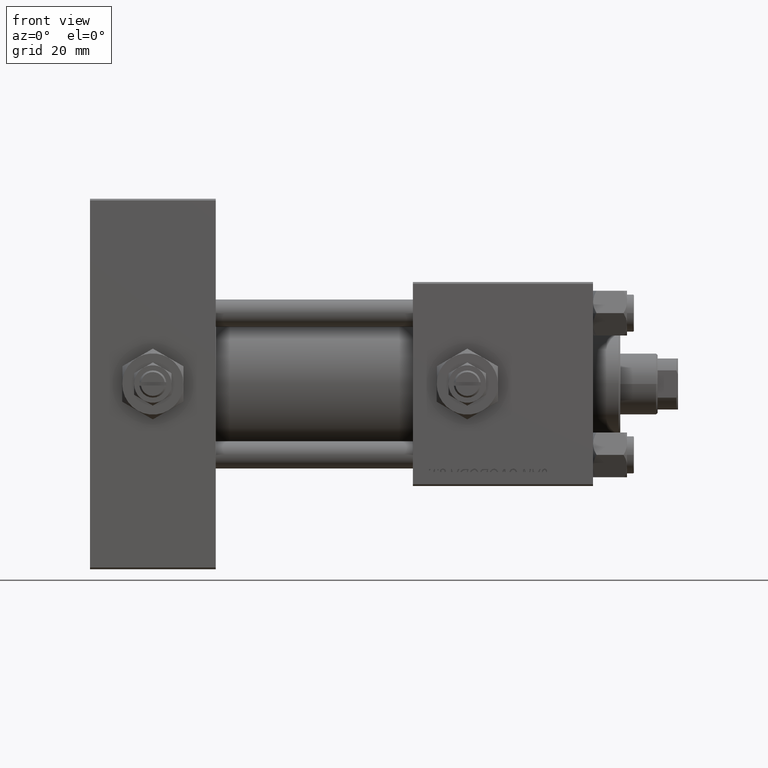
[diagram: clean part render]
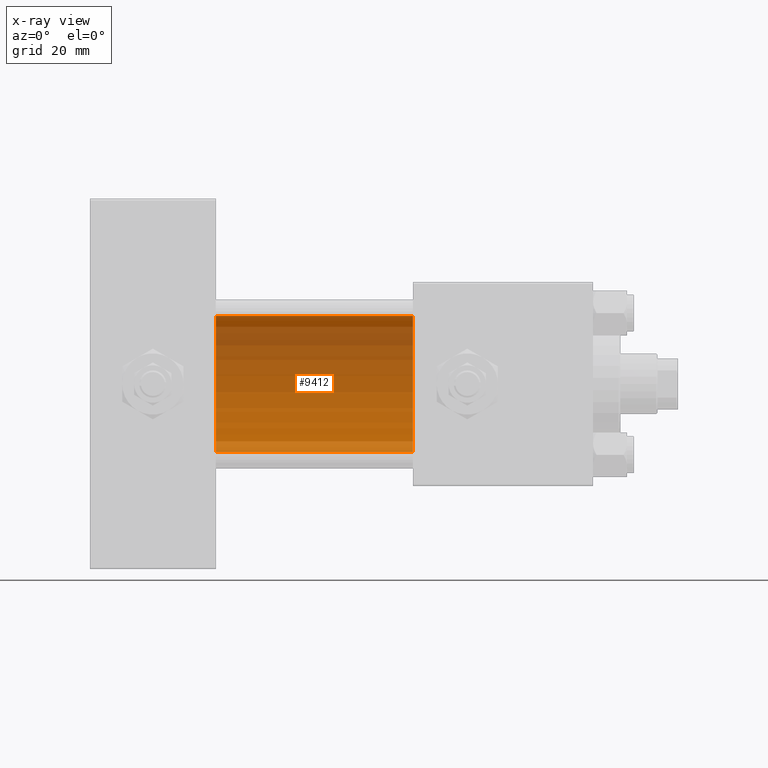
[diagram: x-ray — body ghosted, one internal face saturated and labeled with its STEP entity id]
A machine part, front view, then the same camera in x-ray: the body is ghosted and one INTERNAL B-rep face — a face not visible from any outside direction — is saturated and labeled: STEP entity #9412.
In plain terms, the highlighted cylindrical surface (partial cylindrical patch) has radius 20 mm, axis along (-1, -0, -0).
Its self-contained STEP definition (entity closure, byte-faithful):
#1243 = LINE ( 'NONE', #29421, #18409 ) ;
#1585 = ORIENTED_EDGE ( 'NONE', *, *, #44235, .T. ) ;
#7881 = VERTEX_POINT ( 'NONE', #27806 ) ;
#8441 = CARTESIAN_POINT ( 'NONE',  ( 95.00000000000000000, -2.602085213965210642E-15, 20.00000000000000000 ) ) ;
#9412 = ADVANCED_FACE ( 'NONE', ( #27616 ), #10519, .F. ) ;
#9992 = CIRCLE ( 'NONE', #14161, 20.00000000000000000 ) ;
#10519 = CYLINDRICAL_SURFACE ( 'NONE', #28559, 20.00000000000000000 ) ;
#12654 = LINE ( 'NONE', #8441, #19506 ) ;
#14161 = AXIS2_PLACEMENT_3D ( 'NONE', #46076, #25565, #22157 ) ;
#15493 = DIRECTION ( 'NONE',  ( 0.000000000000000000, 0.000000000000000000, 1.000000000000000000 ) ) ;
#15729 = ORIENTED_EDGE ( 'NONE', *, *, #37610, .F. ) ;
#18409 = VECTOR ( 'NONE', #33359, 1000.000000000000000 ) ;
#19190 = CARTESIAN_POINT ( 'NONE',  ( 95.00000000000000000, -2.602085213965210642E-15, 0.000000000000000000 ) ) ;
#19452 = DIRECTION ( 'NONE',  ( -1.000000000000000000, -0.000000000000000000, -0.000000000000000000 ) ) ;
#19506 = VECTOR ( 'NONE', #43988, 1000.000000000000000 ) ;
#19607 = DIRECTION ( 'NONE',  ( 0.000000000000000000, 0.000000000000000000, -1.000000000000000000 ) ) ;
#20121 = CARTESIAN_POINT ( 'NONE',  ( 95.00000000000000000, -2.602085213965210642E-15, 0.000000000000000000 ) ) ;
#20432 = CARTESIAN_POINT ( 'NONE',  ( 95.00000000000000000, -1.527916156705046464E-16, -20.00000000000000000 ) ) ;
#20792 = CARTESIAN_POINT ( 'NONE',  ( 95.00000000000000000, -2.602085213965210642E-15, 20.00000000000000000 ) ) ;
#22106 = AXIS2_PLACEMENT_3D ( 'NONE', #20121, #32225, #19607 ) ;
#22157 = DIRECTION ( 'NONE',  ( 0.000000000000000000, 0.000000000000000000, -1.000000000000000000 ) ) ;
#25012 = VERTEX_POINT ( 'NONE', #33752 ) ;
#25565 = DIRECTION ( 'NONE',  ( 1.000000000000000000, 0.000000000000000000, 0.000000000000000000 ) ) ;
#27616 = FACE_OUTER_BOUND ( 'NONE', #38031, .T. ) ;
#27806 = CARTESIAN_POINT ( 'NONE',  ( 37.00000000000000000, -1.527916156705046464E-16, -20.00000000000000000 ) ) ;
#28280 = EDGE_CURVE ( 'NONE', #7881, #25012, #9992, .T. ) ;
#28559 = AXIS2_PLACEMENT_3D ( 'NONE', #19190, #19452, #15493 ) ;
#28596 = VERTEX_POINT ( 'NONE', #20792 ) ;
#29421 = CARTESIAN_POINT ( 'NONE',  ( 95.00000000000000000, -1.527916156705046464E-16, -20.00000000000000000 ) ) ;
#31424 = VERTEX_POINT ( 'NONE', #20432 ) ;
#32225 = DIRECTION ( 'NONE',  ( 1.000000000000000000, 0.000000000000000000, 0.000000000000000000 ) ) ;
#33359 = DIRECTION ( 'NONE',  ( -1.000000000000000000, -0.000000000000000000, -0.000000000000000000 ) ) ;
#33752 = CARTESIAN_POINT ( 'NONE',  ( 37.00000000000000000, -2.602085213965210642E-15, 20.00000000000000000 ) ) ;
#37610 = EDGE_CURVE ( 'NONE', #31424, #7881, #1243, .T. ) ;
#38031 = EDGE_LOOP ( 'NONE', ( #15729, #50434, #1585, #42487 ) ) ;
#42487 = ORIENTED_EDGE ( 'NONE', *, *, #28280, .F. ) ;
#43988 = DIRECTION ( 'NONE',  ( -1.000000000000000000, -0.000000000000000000, -0.000000000000000000 ) ) ;
#44235 = EDGE_CURVE ( 'NONE', #28596, #25012, #12654, .T. ) ;
#46076 = CARTESIAN_POINT ( 'NONE',  ( 37.00000000000000000, -2.602085213965210642E-15, 0.000000000000000000 ) ) ;
#48952 = CIRCLE ( 'NONE', #22106, 20.00000000000000000 ) ;
#49537 = EDGE_CURVE ( 'NONE', #31424, #28596, #48952, .T. ) ;
#50434 = ORIENTED_EDGE ( 'NONE', *, *, #49537, .T. ) ;